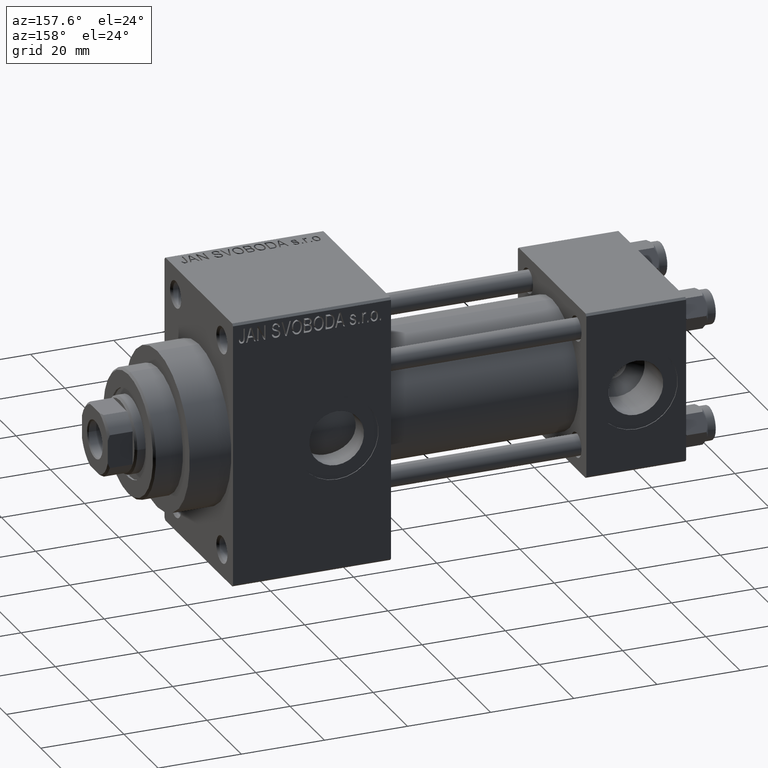
[diagram: clean part render]
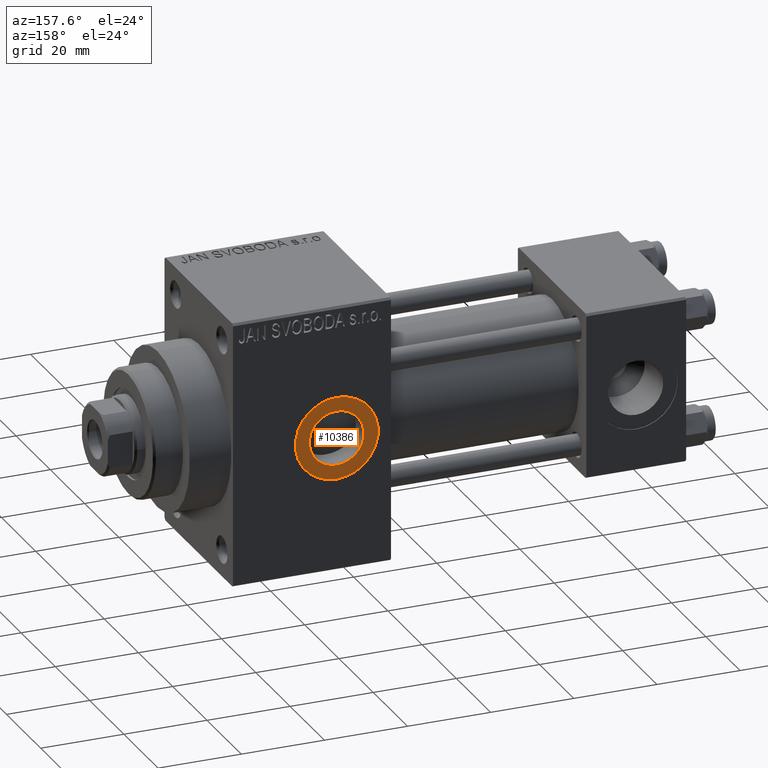
[diagram: same view with one face highlighted and labeled with its STEP entity id]
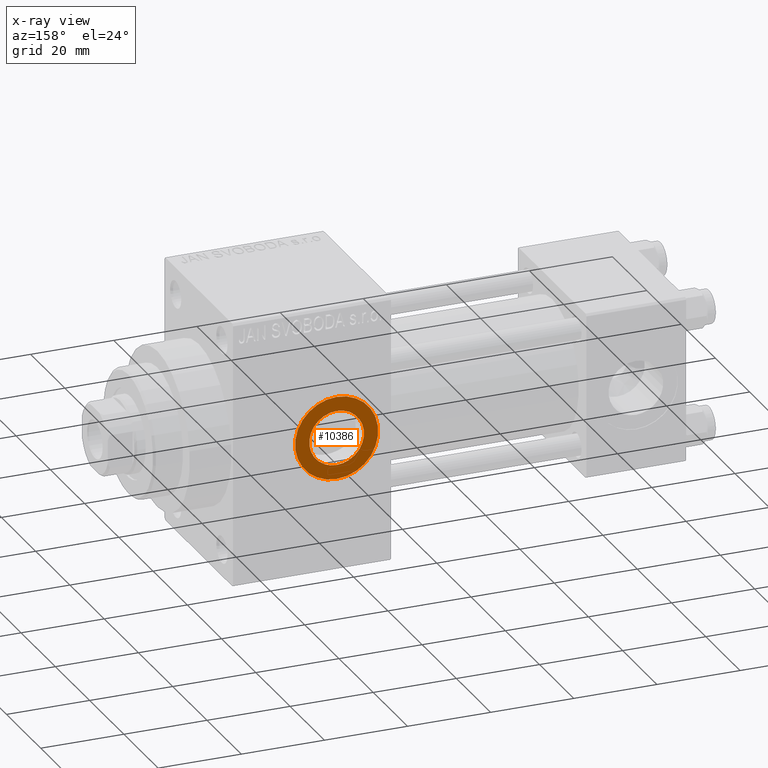
[diagram: x-ray of the same camera — body ghosted, the highlighted face saturated]
A machine part, auxiliary view. The second image highlights one B-rep face of the part: STEP entity #10386.
The next image is the same camera in x-ray: the body ghosted, the highlighted face saturated — about 0% of this face is hidden behind the body in this view.
In plain terms, the highlighted planar face has unit normal (0, 1, 0).
Its self-contained STEP definition (entity closure, byte-faithful):
#1249 = FACE_OUTER_BOUND ( 'NONE', #17881, .T. ) ;
#2173 = EDGE_CURVE ( 'NONE', #26191, #11649, #6833, .T. ) ;
#2207 = CARTESIAN_POINT ( 'NONE',  ( 84.00000000000000000, 19.80000000000000071, 0.000000000000000000 ) ) ;
#2474 = DIRECTION ( 'NONE',  ( 0.000000000000000000, 0.000000000000000000, 1.000000000000000000 ) ) ;
#2703 = ORIENTED_EDGE ( 'NONE', *, *, #11192, .T. ) ;
#2964 = AXIS2_PLACEMENT_3D ( 'NONE', #26305, #11040, #37113 ) ;
#3072 = ORIENTED_EDGE ( 'NONE', *, *, #10462, .F. ) ;
#3247 = EDGE_CURVE ( 'NONE', #17003, #6750, #20269, .T. ) ;
#4239 = DIRECTION ( 'NONE',  ( 0.000000000000000000, 1.000000000000000000, 0.000000000000000000 ) ) ;
#6750 = VERTEX_POINT ( 'NONE', #10431 ) ;
#6833 = CIRCLE ( 'NONE', #46175, 6.580000000001541061 ) ;
#7839 = AXIS2_PLACEMENT_3D ( 'NONE', #41886, #4239, #19971 ) ;
#8341 = CARTESIAN_POINT ( 'NONE',  ( 84.00000000000000000, 19.80000000000000071, 6.580000000001541061 ) ) ;
#10386 = ADVANCED_FACE ( 'NONE', ( #34954, #1249 ), #11603, .T. ) ;
#10431 = CARTESIAN_POINT ( 'NONE',  ( 84.00000000000000000, 19.80000000000000071, -10.00000000000153300 ) ) ;
#10462 = EDGE_CURVE ( 'NONE', #11649, #26191, #40785, .T. ) ;
#11040 = DIRECTION ( 'NONE',  ( 0.000000000000000000, 1.000000000000000000, 0.000000000000000000 ) ) ;
#11192 = EDGE_CURVE ( 'NONE', #6750, #17003, #29034, .T. ) ;
#11603 = PLANE ( 'NONE',  #45509 ) ;
#11649 = VERTEX_POINT ( 'NONE', #37860 ) ;
#12575 = CARTESIAN_POINT ( 'NONE',  ( 84.00000000000000000, 19.80000000000000071, 0.000000000000000000 ) ) ;
#17003 = VERTEX_POINT ( 'NONE', #32147 ) ;
#17881 = EDGE_LOOP ( 'NONE', ( #25468, #2703 ) ) ;
#19582 = AXIS2_PLACEMENT_3D ( 'NONE', #2207, #40101, #24861 ) ;
#19971 = DIRECTION ( 'NONE',  ( 0.000000000000000000, 0.000000000000000000, 1.000000000000000000 ) ) ;
#20269 = CIRCLE ( 'NONE', #2964, 10.00000000000153300 ) ;
#20935 = DIRECTION ( 'NONE',  ( 0.000000000000000000, 1.000000000000000000, 0.000000000000000000 ) ) ;
#24861 = DIRECTION ( 'NONE',  ( 0.000000000000000000, 0.000000000000000000, 1.000000000000000000 ) ) ;
#25468 = ORIENTED_EDGE ( 'NONE', *, *, #3247, .T. ) ;
#26191 = VERTEX_POINT ( 'NONE', #8341 ) ;
#26305 = CARTESIAN_POINT ( 'NONE',  ( 84.00000000000000000, 19.80000000000000071, 0.000000000000000000 ) ) ;
#26702 = EDGE_LOOP ( 'NONE', ( #46706, #3072 ) ) ;
#26871 = DIRECTION ( 'NONE',  ( 0.000000000000000000, 1.000000000000000000, 0.000000000000000000 ) ) ;
#27105 = DIRECTION ( 'NONE',  ( 0.000000000000000000, -0.000000000000000000, 1.000000000000000000 ) ) ;
#29034 = CIRCLE ( 'NONE', #7839, 10.00000000000153300 ) ;
#32010 = CARTESIAN_POINT ( 'NONE',  ( 84.00000000000000000, 19.80000000000000071, 0.000000000000000000 ) ) ;
#32147 = CARTESIAN_POINT ( 'NONE',  ( 84.00000000000000000, 19.80000000000000071, 10.00000000000153300 ) ) ;
#34954 = FACE_BOUND ( 'NONE', #26702, .T. ) ;
#37113 = DIRECTION ( 'NONE',  ( 0.000000000000000000, 0.000000000000000000, 1.000000000000000000 ) ) ;
#37860 = CARTESIAN_POINT ( 'NONE',  ( 84.00000000000000000, 19.80000000000000071, -6.580000000001541061 ) ) ;
#40101 = DIRECTION ( 'NONE',  ( 0.000000000000000000, 1.000000000000000000, 0.000000000000000000 ) ) ;
#40785 = CIRCLE ( 'NONE', #19582, 6.580000000001541061 ) ;
#41886 = CARTESIAN_POINT ( 'NONE',  ( 84.00000000000000000, 19.80000000000000071, 0.000000000000000000 ) ) ;
#45509 = AXIS2_PLACEMENT_3D ( 'NONE', #12575, #26871, #27105 ) ;
#46175 = AXIS2_PLACEMENT_3D ( 'NONE', #32010, #20935, #2474 ) ;
#46706 = ORIENTED_EDGE ( 'NONE', *, *, #2173, .F. ) ;